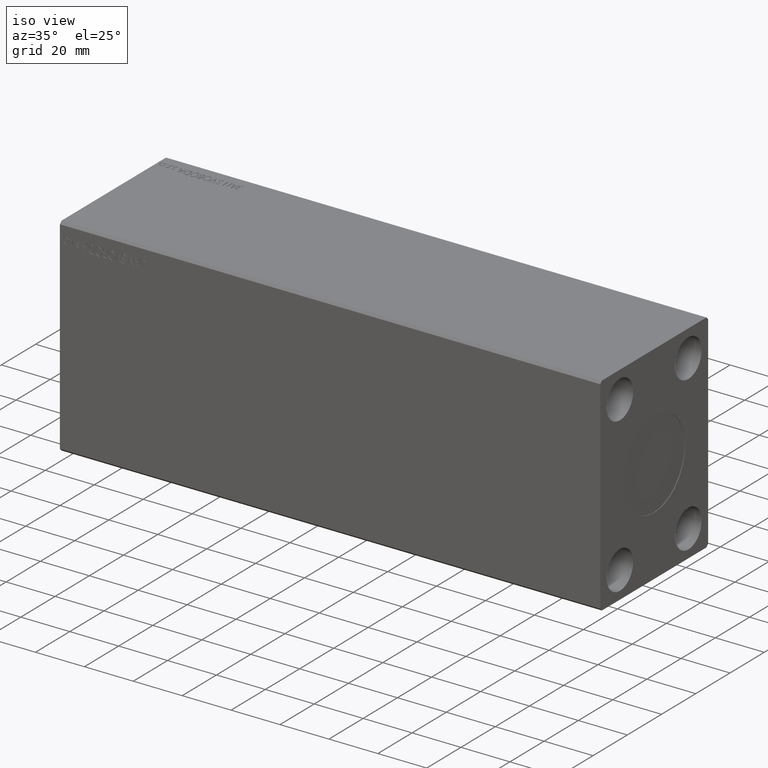
[diagram: clean part render]
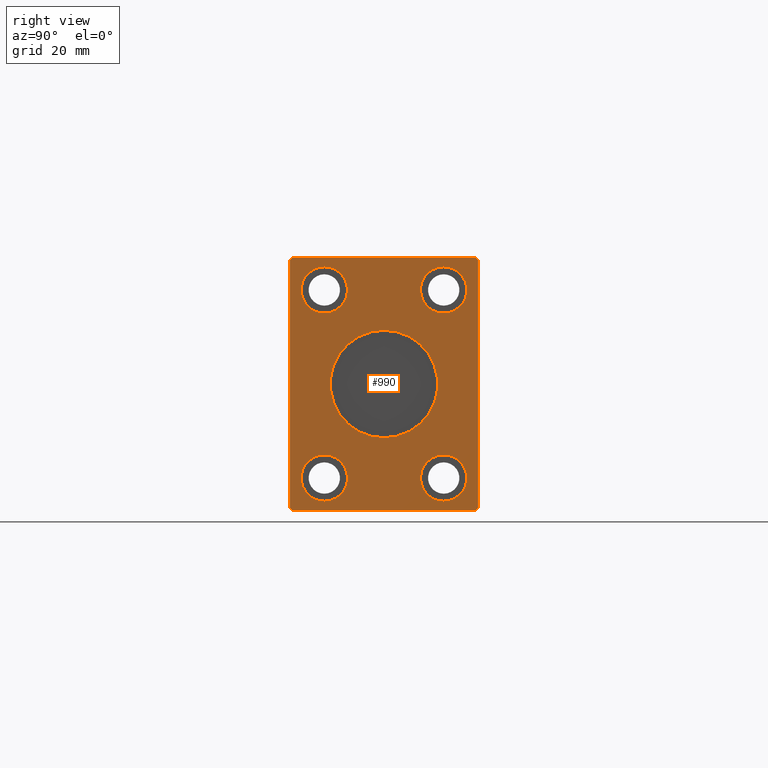
[diagram: tour spotlight — one face highlighted and labeled with its STEP entity id]
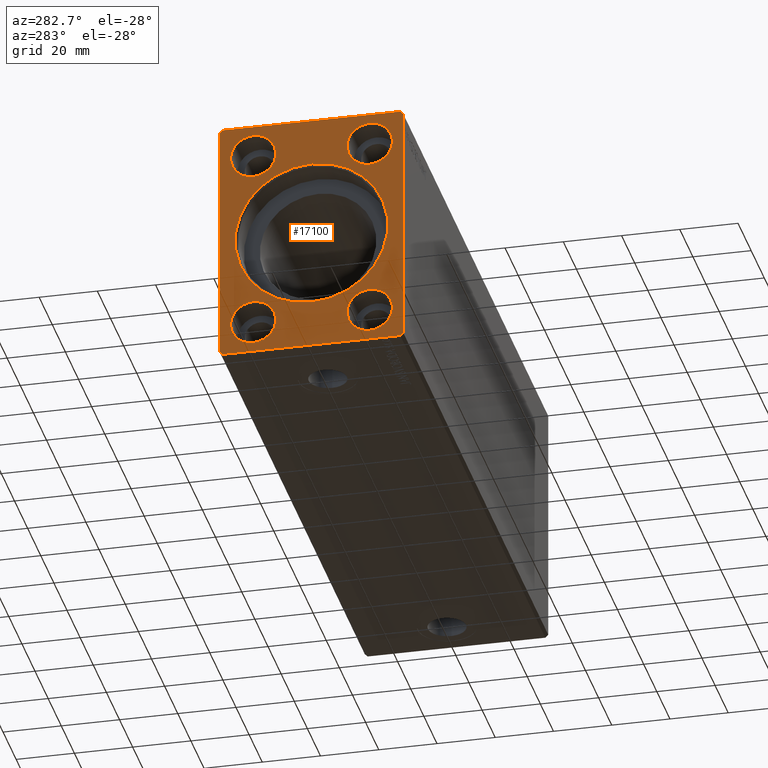
[diagram: tour spotlight — one face highlighted and labeled with its STEP entity id]
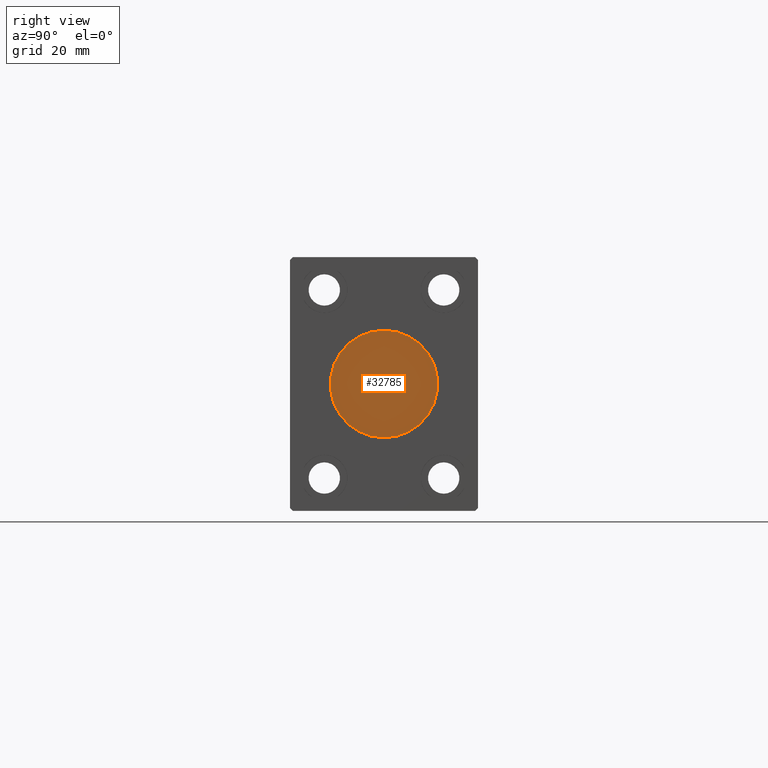
[diagram: tour spotlight — one face highlighted and labeled with its STEP entity id]
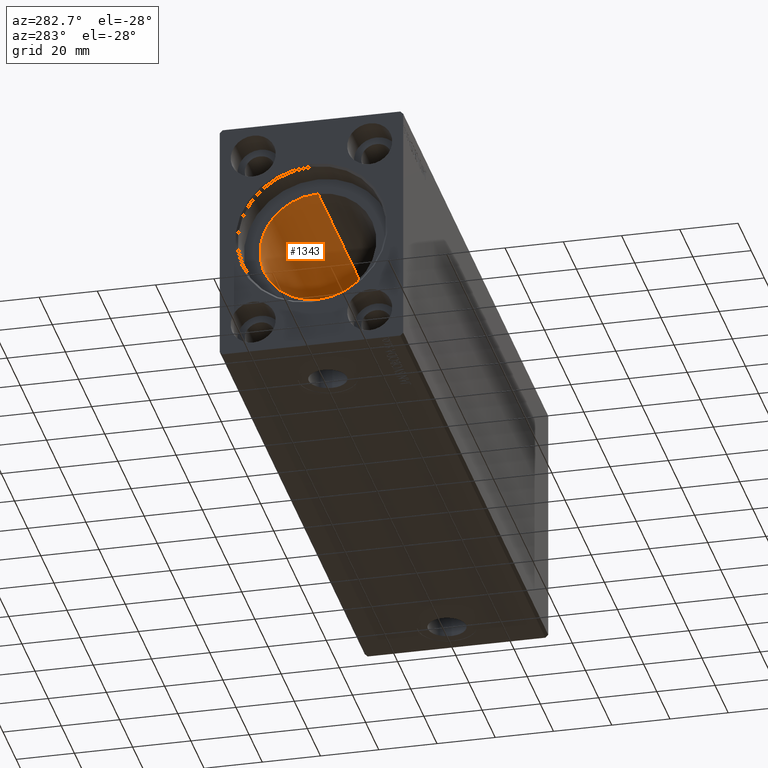
[diagram: tour spotlight — one face highlighted and labeled with its STEP entity id]
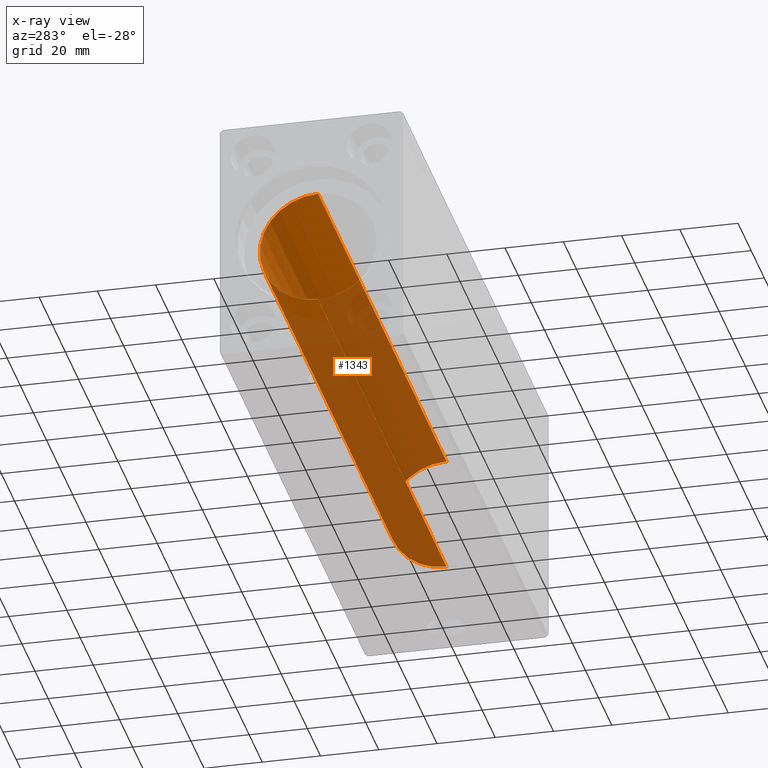
[diagram: x-ray of the same camera — body ghosted, this tour face saturated]
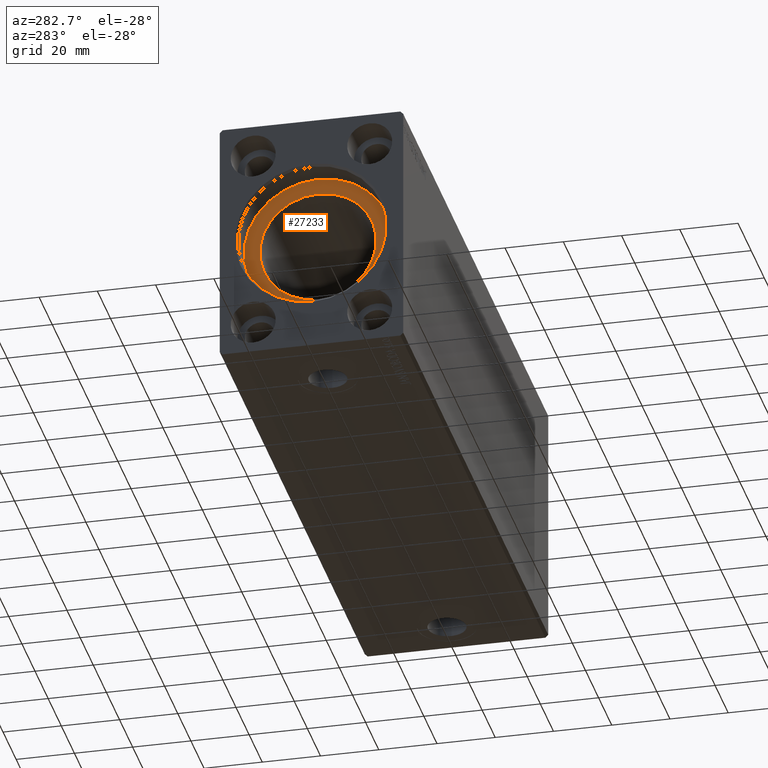
[diagram: tour spotlight — one face highlighted and labeled with its STEP entity id]
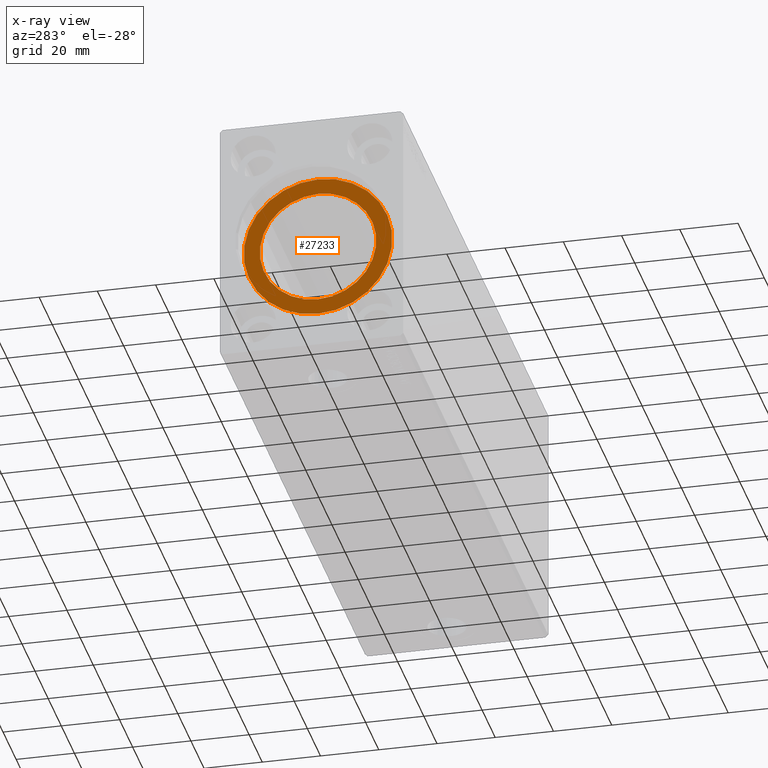
[diagram: x-ray of the same camera — body ghosted, this tour face saturated]
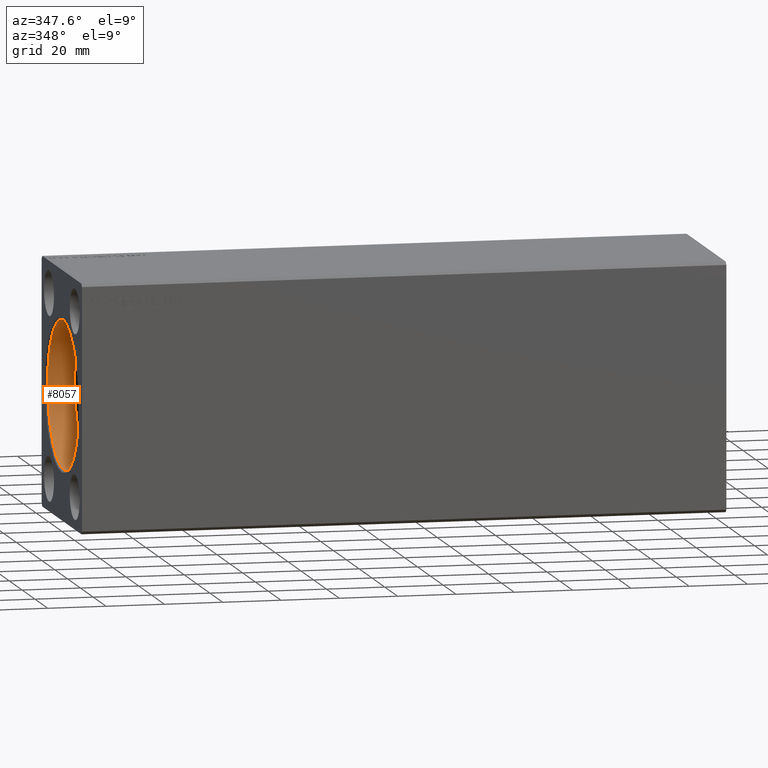
[diagram: tour spotlight — one face highlighted and labeled with its STEP entity id]
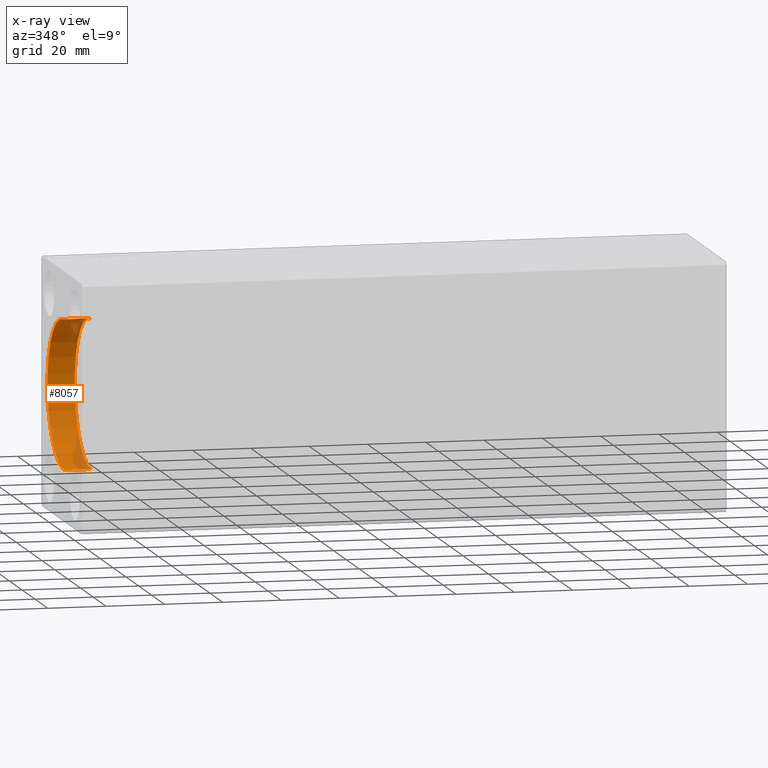
[diagram: x-ray of the same camera — body ghosted, this tour face saturated]
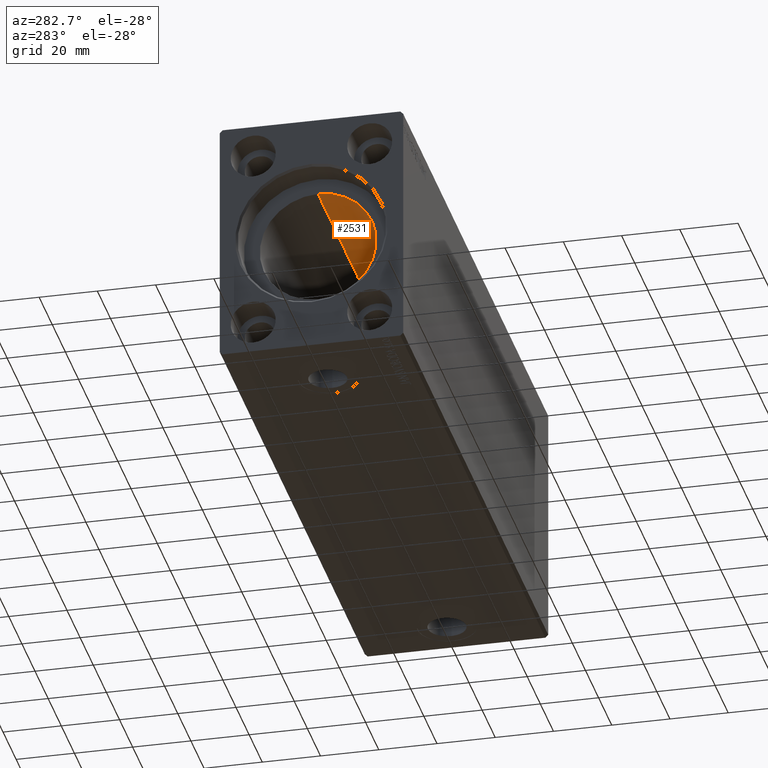
[diagram: tour spotlight — one face highlighted and labeled with its STEP entity id]
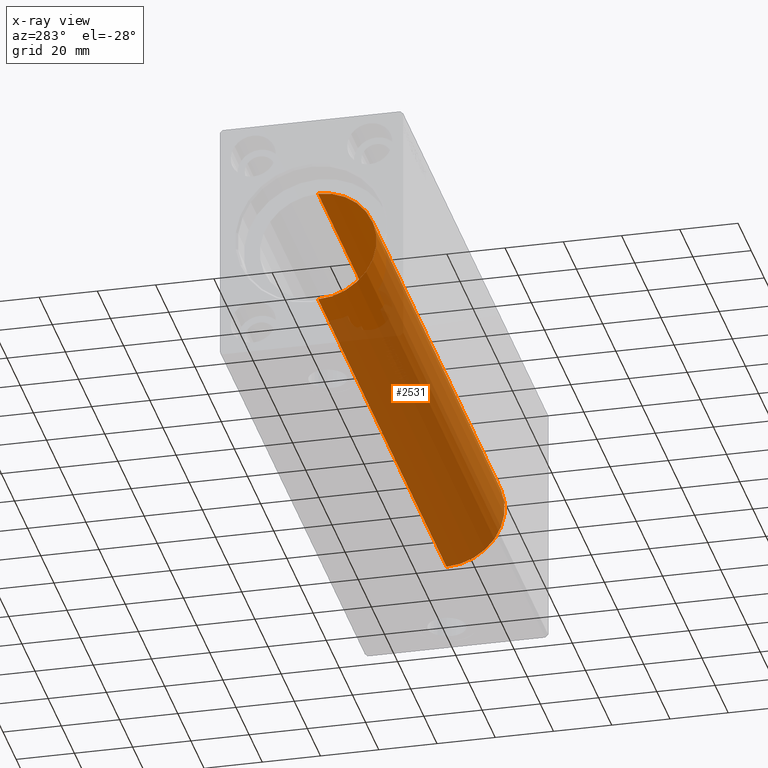
[diagram: x-ray of the same camera — body ghosted, this tour face saturated]
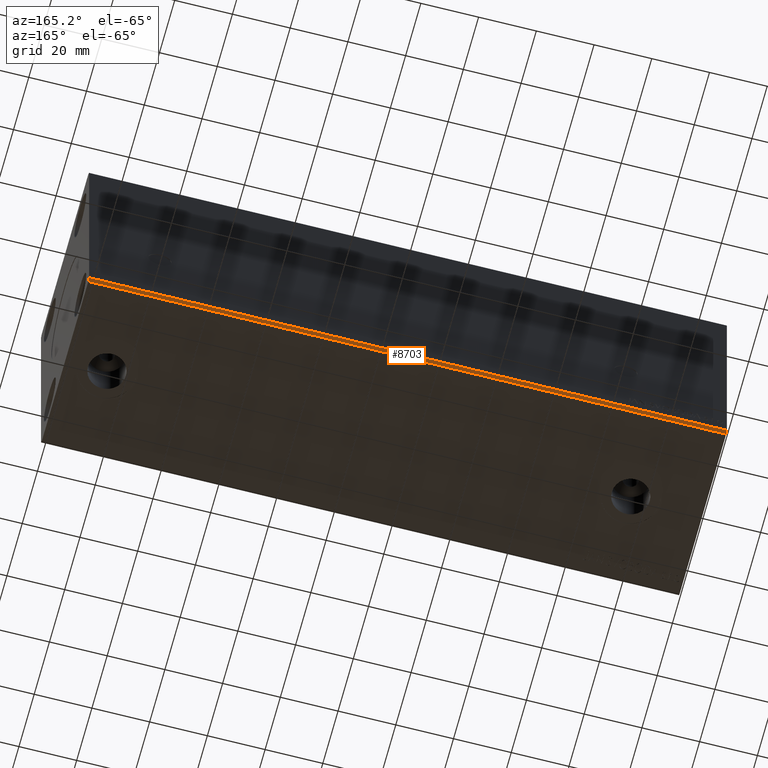
[diagram: tour spotlight — one face highlighted and labeled with its STEP entity id]
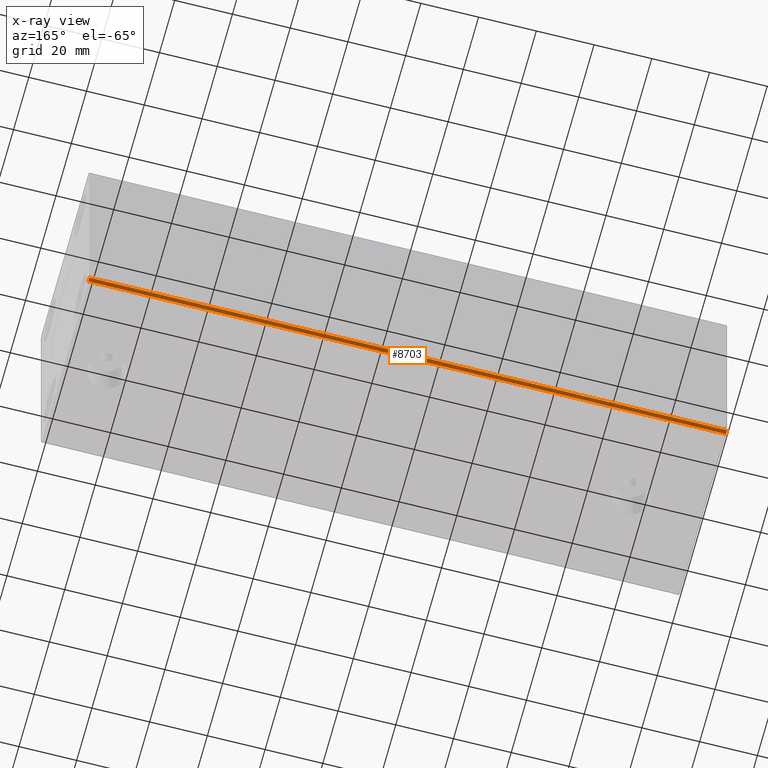
[diagram: x-ray of the same camera — body ghosted, this tour face saturated]
A machine part: a face-by-face anatomy tour. The part has 825 B-rep faces; the first image is the clean iso view, then the 8 largest visible faces are spotlighted one at a time (largest first), each with its STEP entity span.

Face 1 — right view, entity #990. In plain terms, the highlighted planar face has unit normal (1, 0, 0).
Definition (entity closure, byte-faithful):
#188 = CARTESIAN_POINT ( 'NONE',  ( 221.0000000000000000, 20.00000000000000355, 39.25000000000001421 ) ) ;
#322 = AXIS2_PLACEMENT_3D ( 'NONE', #17557, #14524, #27432 ) ;
#345 = ORIENTED_EDGE ( 'NONE', *, *, #14232, .T. ) ;
#841 = DIRECTION ( 'NONE',  ( 1.000000000000000000, 0.000000000000000000, 0.000000000000000000 ) ) ;
#850 = AXIS2_PLACEMENT_3D ( 'NONE', #18272, #40393, #14181 ) ;
#990 = ADVANCED_FACE ( 'NONE', ( #41472, #25145, #42525, #28788, #25769, #12878 ), #41890, .T. ) ;
#1108 = CARTESIAN_POINT ( 'NONE',  ( 221.0000000000000000, 20.00000000000000355, -39.24999999999998579 ) ) ;
#1114 = CARTESIAN_POINT ( 'NONE',  ( 221.0000000000000000, 20.00000000000000355, -31.49999999999998579 ) ) ;
#1329 = CIRCLE ( 'NONE', #12291, 7.750000000000000000 ) ;
#2014 = DIRECTION ( 'NONE',  ( 0.000000000000000000, -0.7071067811865474617, 0.7071067811865474617 ) ) ;
#2063 = EDGE_CURVE ( 'NONE', #3611, #35465, #28947, .T. ) ;
#2113 = CARTESIAN_POINT ( 'NONE',  ( 221.0000000000000000, 0.000000000000000000, -18.00000000000000000 ) ) ;
#2221 = VERTEX_POINT ( 'NONE', #31556 ) ;
#2292 = CARTESIAN_POINT ( 'NONE',  ( 221.0000000000000000, 20.00000000000000355, -23.74999999999998579 ) ) ;
#2311 = VECTOR ( 'NONE', #41940, 1000.000000000000000 ) ;
#2556 = ORIENTED_EDGE ( 'NONE', *, *, #19525, .F. ) ;
#2571 = VECTOR ( 'NONE', #40149, 1000.000000000000000 ) ;
#3136 = VERTEX_POINT ( 'NONE', #188 ) ;
#3527 = EDGE_LOOP ( 'NONE', ( #30609, #37494 ) ) ;
#3611 = VERTEX_POINT ( 'NONE', #11922 ) ;
#3717 = CARTESIAN_POINT ( 'NONE',  ( 221.0000000000000000, -19.99999999999999645, -39.24999999999998579 ) ) ;
#4621 = CARTESIAN_POINT ( 'NONE',  ( 221.0000000000000000, -31.50000000000000000, 41.49999999999999289 ) ) ;
#4965 = VERTEX_POINT ( 'NONE', #8391 ) ;
#5108 = CIRCLE ( 'NONE', #322, 7.750000000000000000 ) ;
#5175 = VERTEX_POINT ( 'NONE', #31520 ) ;
#5393 = CARTESIAN_POINT ( 'NONE',  ( 221.0000000000000000, 31.50000000000001421, 41.49999999999999289 ) ) ;
#5409 = DIRECTION ( 'NONE',  ( 0.000000000000000000, 0.000000000000000000, 1.000000000000000000 ) ) ;
#5449 = CARTESIAN_POINT ( 'NONE',  ( 221.0000000000000000, -30.50000000000000711, -42.50000000000000711 ) ) ;
#5748 = ORIENTED_EDGE ( 'NONE', *, *, #27133, .T. ) ;
#5787 = EDGE_CURVE ( 'NONE', #32675, #37965, #28838, .T. ) ;
#5836 = AXIS2_PLACEMENT_3D ( 'NONE', #38049, #6189, #5409 ) ;
#5898 = EDGE_LOOP ( 'NONE', ( #2556, #32119 ) ) ;
#5958 = CARTESIAN_POINT ( 'NONE',  ( 221.0000000000000000, -30.50000000000000355, 42.49999999999999289 ) ) ;
#6145 = AXIS2_PLACEMENT_3D ( 'NONE', #34605, #15466, #41675 ) ;
#6189 = DIRECTION ( 'NONE',  ( -1.000000000000000000, -0.000000000000000000, -0.000000000000000000 ) ) ;
#7093 = LINE ( 'NONE', #40382, #23037 ) ;
#7389 = EDGE_CURVE ( 'NONE', #32930, #32675, #17232, .T. ) ;
#7712 = CARTESIAN_POINT ( 'NONE',  ( 221.0000000000000000, 31.50000000000001421, -41.50000000000000711 ) ) ;
#7934 = DIRECTION ( 'NONE',  ( 1.000000000000000000, -0.000000000000000000, -0.000000000000000000 ) ) ;
#8120 = EDGE_CURVE ( 'NONE', #26869, #22529, #27068, .T. ) ;
#8391 = CARTESIAN_POINT ( 'NONE',  ( 221.0000000000000000, -30.50000000000000355, 42.49999999999999289 ) ) ;
#9571 = DIRECTION ( 'NONE',  ( 1.000000000000000000, -0.000000000000000000, -0.000000000000000000 ) ) ;
#9619 = VECTOR ( 'NONE', #37416, 999.9999999999998863 ) ;
#9757 = AXIS2_PLACEMENT_3D ( 'NONE', #18921, #15899, #21932 ) ;
#9962 = VERTEX_POINT ( 'NONE', #23535 ) ;
#10293 = CARTESIAN_POINT ( 'NONE',  ( 221.0000000000000000, 0.000000000000000000, 0.000000000000000000 ) ) ;
#10900 = DIRECTION ( 'NONE',  ( 0.000000000000000000, 0.000000000000000000, 1.000000000000000000 ) ) ;
#11028 = VERTEX_POINT ( 'NONE', #42450 ) ;
#11446 = CIRCLE ( 'NONE', #25843, 18.00000000000000000 ) ;
#11922 = CARTESIAN_POINT ( 'NONE',  ( 221.0000000000000000, 2.204364238465235428E-15, 18.00000000000000000 ) ) ;
#12276 = EDGE_CURVE ( 'NONE', #37167, #26158, #14889, .T. ) ;
#12291 = AXIS2_PLACEMENT_3D ( 'NONE', #35777, #9571, #19255 ) ;
#12638 = ORIENTED_EDGE ( 'NONE', *, *, #8120, .T. ) ;
#12675 = EDGE_CURVE ( 'NONE', #3136, #2221, #5108, .T. ) ;
#12878 = FACE_BOUND ( 'NONE', #39175, .T. ) ;
#14181 = DIRECTION ( 'NONE',  ( 0.000000000000000000, 0.000000000000000000, -1.000000000000000000 ) ) ;
#14232 = EDGE_CURVE ( 'NONE', #24899, #11028, #16099, .T. ) ;
#14351 = CIRCLE ( 'NONE', #6145, 7.750000000000000000 ) ;
#14524 = DIRECTION ( 'NONE',  ( 1.000000000000000000, -0.000000000000000000, -0.000000000000000000 ) ) ;
#14656 = VERTEX_POINT ( 'NONE', #4621 ) ;
#14843 = DIRECTION ( 'NONE',  ( 0.000000000000000000, 0.000000000000000000, 1.000000000000000000 ) ) ;
#14889 = LINE ( 'NONE', #30998, #35301 ) ;
#15346 = ORIENTED_EDGE ( 'NONE', *, *, #12276, .T. ) ;
#15466 = DIRECTION ( 'NONE',  ( -1.000000000000000000, -0.000000000000000000, -0.000000000000000000 ) ) ;
#15899 = DIRECTION ( 'NONE',  ( 1.000000000000000000, 0.000000000000000000, 0.000000000000000000 ) ) ;
#16079 = VERTEX_POINT ( 'NONE', #3717 ) ;
#16099 = CIRCLE ( 'NONE', #5836, 7.750000000000000000 ) ;
#16344 = CIRCLE ( 'NONE', #26650, 7.750000000000000000 ) ;
#16513 = EDGE_CURVE ( 'NONE', #14656, #32930, #7093, .T. ) ;
#17232 = LINE ( 'NONE', #30728, #19486 ) ;
#17384 = ORIENTED_EDGE ( 'NONE', *, *, #39932, .T. ) ;
#17557 = CARTESIAN_POINT ( 'NONE',  ( 221.0000000000000000, 20.00000000000000355, 31.50000000000001421 ) ) ;
#17739 = AXIS2_PLACEMENT_3D ( 'NONE', #32156, #38410, #18664 ) ;
#18037 = DIRECTION ( 'NONE',  ( 0.000000000000000000, 0.000000000000000000, -1.000000000000000000 ) ) ;
#18262 = ORIENTED_EDGE ( 'NONE', *, *, #29694, .T. ) ;
#18272 = CARTESIAN_POINT ( 'NONE',  ( 221.0000000000000000, 0.000000000000000000, 0.000000000000000000 ) ) ;
#18427 = ORIENTED_EDGE ( 'NONE', *, *, #37268, .T. ) ;
#18664 = DIRECTION ( 'NONE',  ( 0.000000000000000000, 0.000000000000000000, -1.000000000000000000 ) ) ;
#18921 = CARTESIAN_POINT ( 'NONE',  ( 221.0000000000000000, 0.000000000000000000, 0.000000000000000000 ) ) ;
#19255 = DIRECTION ( 'NONE',  ( 0.000000000000000000, 0.000000000000000000, -1.000000000000000000 ) ) ;
#19486 = VECTOR ( 'NONE', #30941, 1000.000000000000114 ) ;
#19525 = EDGE_CURVE ( 'NONE', #35465, #3611, #11446, .T. ) ;
#19693 = VECTOR ( 'NONE', #23905, 1000.000000000000000 ) ;
#20304 = CARTESIAN_POINT ( 'NONE',  ( 221.0000000000000000, 30.50000000000001776, -42.50000000000000711 ) ) ;
#21217 = EDGE_CURVE ( 'NONE', #26158, #4965, #26477, .T. ) ;
#21286 = CARTESIAN_POINT ( 'NONE',  ( 221.0000000000000000, 30.50000000000001421, 42.49999999999999289 ) ) ;
#21698 = ORIENTED_EDGE ( 'NONE', *, *, #12675, .F. ) ;
#21725 = LINE ( 'NONE', #34827, #9619 ) ;
#21797 = ORIENTED_EDGE ( 'NONE', *, *, #39326, .F. ) ;
#21932 = DIRECTION ( 'NONE',  ( 0.000000000000000000, 0.000000000000000000, -1.000000000000000000 ) ) ;
#22108 = CARTESIAN_POINT ( 'NONE',  ( 221.0000000000000000, -31.50000000000000000, -41.50000000000000711 ) ) ;
#22529 = VERTEX_POINT ( 'NONE', #2292 ) ;
#23007 = ORIENTED_EDGE ( 'NONE', *, *, #21217, .T. ) ;
#23037 = VECTOR ( 'NONE', #23853, 1000.000000000000000 ) ;
#23482 = CARTESIAN_POINT ( 'NONE',  ( 221.0000000000000000, 30.50000000000001421, 42.49999999999999289 ) ) ;
#23535 = CARTESIAN_POINT ( 'NONE',  ( 221.0000000000000000, -19.99999999999999645, -23.74999999999998579 ) ) ;
#23853 = DIRECTION ( 'NONE',  ( 0.000000000000000000, 0.000000000000000000, -1.000000000000000000 ) ) ;
#23905 = DIRECTION ( 'NONE',  ( 0.000000000000000000, -1.000000000000000000, 0.000000000000000000 ) ) ;
#24483 = EDGE_LOOP ( 'NONE', ( #15346, #23007, #5748, #35468, #29497, #42512, #17384, #34911 ) ) ;
#24874 = DIRECTION ( 'NONE',  ( 0.000000000000000000, -0.7071067811865462405, -0.7071067811865489050 ) ) ;
#24899 = VERTEX_POINT ( 'NONE', #36375 ) ;
#25145 = FACE_BOUND ( 'NONE', #36592, .T. ) ;
#25259 = CIRCLE ( 'NONE', #17739, 7.750000000000000000 ) ;
#25360 = CIRCLE ( 'NONE', #30846, 7.750000000000000000 ) ;
#25769 = FACE_BOUND ( 'NONE', #3527, .T. ) ;
#25843 = AXIS2_PLACEMENT_3D ( 'NONE', #10293, #841, #39722 ) ;
#26158 = VERTEX_POINT ( 'NONE', #21286 ) ;
#26477 = LINE ( 'NONE', #23482, #19693 ) ;
#26650 = AXIS2_PLACEMENT_3D ( 'NONE', #27012, #36890, #10900 ) ;
#26869 = VERTEX_POINT ( 'NONE', #1108 ) ;
#27012 = CARTESIAN_POINT ( 'NONE',  ( 221.0000000000000000, -19.99999999999999645, 31.50000000000001421 ) ) ;
#27068 = CIRCLE ( 'NONE', #32518, 7.750000000000000000 ) ;
#27094 = EDGE_CURVE ( 'NONE', #5175, #37167, #30676, .T. ) ;
#27133 = EDGE_CURVE ( 'NONE', #4965, #14656, #31525, .T. ) ;
#27432 = DIRECTION ( 'NONE',  ( 0.000000000000000000, 0.000000000000000000, -1.000000000000000000 ) ) ;
#28788 = FACE_OUTER_BOUND ( 'NONE', #24483, .T. ) ;
#28838 = LINE ( 'NONE', #5449, #2311 ) ;
#28947 = CIRCLE ( 'NONE', #850, 18.00000000000000000 ) ;
#29444 = EDGE_CURVE ( 'NONE', #16079, #9962, #25259, .T. ) ;
#29497 = ORIENTED_EDGE ( 'NONE', *, *, #7389, .T. ) ;
#29694 = EDGE_CURVE ( 'NONE', #11028, #24899, #16344, .T. ) ;
#30609 = ORIENTED_EDGE ( 'NONE', *, *, #29444, .F. ) ;
#30676 = LINE ( 'NONE', #7712, #2571 ) ;
#30728 = CARTESIAN_POINT ( 'NONE',  ( 221.0000000000000000, -31.50000000000000000, -41.50000000000000711 ) ) ;
#30846 = AXIS2_PLACEMENT_3D ( 'NONE', #34345, #7934, #18037 ) ;
#30941 = DIRECTION ( 'NONE',  ( 0.000000000000000000, 0.7071067811865451302, -0.7071067811865500152 ) ) ;
#30998 = CARTESIAN_POINT ( 'NONE',  ( 221.0000000000000000, 31.50000000000001421, 41.49999999999999289 ) ) ;
#31344 = EDGE_CURVE ( 'NONE', #9962, #16079, #1329, .T. ) ;
#31520 = CARTESIAN_POINT ( 'NONE',  ( 221.0000000000000000, 31.50000000000001421, -41.50000000000000711 ) ) ;
#31525 = LINE ( 'NONE', #5958, #34135 ) ;
#31556 = CARTESIAN_POINT ( 'NONE',  ( 221.0000000000000000, 20.00000000000000355, 23.75000000000001421 ) ) ;
#32119 = ORIENTED_EDGE ( 'NONE', *, *, #2063, .F. ) ;
#32156 = CARTESIAN_POINT ( 'NONE',  ( 221.0000000000000000, -19.99999999999999645, -31.49999999999998579 ) ) ;
#32518 = AXIS2_PLACEMENT_3D ( 'NONE', #1114, #37622, #14843 ) ;
#32675 = VERTEX_POINT ( 'NONE', #41916 ) ;
#32930 = VERTEX_POINT ( 'NONE', #22108 ) ;
#34135 = VECTOR ( 'NONE', #24874, 999.9999999999998863 ) ;
#34345 = CARTESIAN_POINT ( 'NONE',  ( 221.0000000000000000, 20.00000000000000355, 31.50000000000001421 ) ) ;
#34605 = CARTESIAN_POINT ( 'NONE',  ( 221.0000000000000000, 20.00000000000000355, -31.49999999999998579 ) ) ;
#34827 = CARTESIAN_POINT ( 'NONE',  ( 221.0000000000000000, 30.50000000000001776, -42.50000000000000711 ) ) ;
#34911 = ORIENTED_EDGE ( 'NONE', *, *, #27094, .T. ) ;
#35297 = EDGE_LOOP ( 'NONE', ( #12638, #18427 ) ) ;
#35301 = VECTOR ( 'NONE', #2014, 1000.000000000000114 ) ;
#35465 = VERTEX_POINT ( 'NONE', #2113 ) ;
#35468 = ORIENTED_EDGE ( 'NONE', *, *, #16513, .T. ) ;
#35777 = CARTESIAN_POINT ( 'NONE',  ( 221.0000000000000000, -19.99999999999999645, -31.49999999999998579 ) ) ;
#36375 = CARTESIAN_POINT ( 'NONE',  ( 221.0000000000000000, -19.99999999999999645, 23.75000000000001421 ) ) ;
#36592 = EDGE_LOOP ( 'NONE', ( #345, #18262 ) ) ;
#36890 = DIRECTION ( 'NONE',  ( -1.000000000000000000, -0.000000000000000000, -0.000000000000000000 ) ) ;
#37167 = VERTEX_POINT ( 'NONE', #5393 ) ;
#37268 = EDGE_CURVE ( 'NONE', #22529, #26869, #14351, .T. ) ;
#37416 = DIRECTION ( 'NONE',  ( 0.000000000000000000, 0.7071067811865462405, 0.7071067811865489050 ) ) ;
#37494 = ORIENTED_EDGE ( 'NONE', *, *, #31344, .F. ) ;
#37622 = DIRECTION ( 'NONE',  ( -1.000000000000000000, -0.000000000000000000, -0.000000000000000000 ) ) ;
#37965 = VERTEX_POINT ( 'NONE', #20304 ) ;
#38049 = CARTESIAN_POINT ( 'NONE',  ( 221.0000000000000000, -19.99999999999999645, 31.50000000000001421 ) ) ;
#38410 = DIRECTION ( 'NONE',  ( 1.000000000000000000, -0.000000000000000000, -0.000000000000000000 ) ) ;
#39175 = EDGE_LOOP ( 'NONE', ( #21797, #21698 ) ) ;
#39326 = EDGE_CURVE ( 'NONE', #2221, #3136, #25360, .T. ) ;
#39722 = DIRECTION ( 'NONE',  ( 0.000000000000000000, 0.000000000000000000, -1.000000000000000000 ) ) ;
#39932 = EDGE_CURVE ( 'NONE', #37965, #5175, #21725, .T. ) ;
#40149 = DIRECTION ( 'NONE',  ( 0.000000000000000000, 0.000000000000000000, 1.000000000000000000 ) ) ;
#40382 = CARTESIAN_POINT ( 'NONE',  ( 221.0000000000000000, -31.50000000000000000, 41.49999999999999289 ) ) ;
#40393 = DIRECTION ( 'NONE',  ( 1.000000000000000000, 0.000000000000000000, 0.000000000000000000 ) ) ;
#41472 = FACE_BOUND ( 'NONE', #5898, .T. ) ;
#41675 = DIRECTION ( 'NONE',  ( 0.000000000000000000, 0.000000000000000000, 1.000000000000000000 ) ) ;
#41890 = PLANE ( 'NONE',  #9757 ) ;
#41916 = CARTESIAN_POINT ( 'NONE',  ( 221.0000000000000000, -30.50000000000000711, -42.50000000000000711 ) ) ;
#41940 = DIRECTION ( 'NONE',  ( 0.000000000000000000, 1.000000000000000000, 0.000000000000000000 ) ) ;
#42450 = CARTESIAN_POINT ( 'NONE',  ( 221.0000000000000000, -19.99999999999999645, 39.25000000000001421 ) ) ;
#42512 = ORIENTED_EDGE ( 'NONE', *, *, #5787, .T. ) ;
#42525 = FACE_BOUND ( 'NONE', #35297, .T. ) ;

Face 2 — auxiliary view, entity #17100. In plain terms, the highlighted planar face has unit normal (1, 0, 0).
Definition (entity closure, byte-faithful):
#298 = ORIENTED_EDGE ( 'NONE', *, *, #40746, .T. ) ;
#529 = DIRECTION ( 'NONE',  ( 0.000000000000000000, 0.000000000000000000, 1.000000000000000000 ) ) ;
#668 = VERTEX_POINT ( 'NONE', #39359 ) ;
#717 = DIRECTION ( 'NONE',  ( 0.000000000000000000, 0.000000000000000000, -1.000000000000000000 ) ) ;
#943 = CARTESIAN_POINT ( 'NONE',  ( 0.000000000000000000, 20.00000000000000355, 31.50000000000001421 ) ) ;
#968 = DIRECTION ( 'NONE',  ( 1.000000000000000000, -0.000000000000000000, -0.000000000000000000 ) ) ;
#1303 = VECTOR ( 'NONE', #6004, 999.9999999999998863 ) ;
#1353 = DIRECTION ( 'NONE',  ( 0.000000000000000000, -1.000000000000000000, 0.000000000000000000 ) ) ;
#1648 = AXIS2_PLACEMENT_3D ( 'NONE', #38506, #9494, #9073 ) ;
#1761 = EDGE_CURVE ( 'NONE', #31023, #18601, #18111, .T. ) ;
#4098 = CARTESIAN_POINT ( 'NONE',  ( 0.000000000000000000, 20.00000000000000355, -31.49999999999998579 ) ) ;
#4153 = FACE_BOUND ( 'NONE', #33943, .T. ) ;
#4281 = CARTESIAN_POINT ( 'NONE',  ( 0.000000000000000000, -30.50000000000000711, -42.50000000000000711 ) ) ;
#4313 = CARTESIAN_POINT ( 'NONE',  ( 0.000000000000000000, 0.000000000000000000, 26.19999999999997442 ) ) ;
#4568 = CARTESIAN_POINT ( 'NONE',  ( 0.000000000000000000, 20.00000000000000355, 39.25000000000001421 ) ) ;
#4683 = EDGE_CURVE ( 'NONE', #668, #25524, #26971, .T. ) ;
#4880 = CARTESIAN_POINT ( 'NONE',  ( 0.000000000000000000, -19.99999999999999645, -23.74999999999998579 ) ) ;
#5168 = VERTEX_POINT ( 'NONE', #40986 ) ;
#5295 = CARTESIAN_POINT ( 'NONE',  ( 0.000000000000000000, -31.50000000000000000, -41.50000000000000711 ) ) ;
#5846 = EDGE_CURVE ( 'NONE', #12329, #29761, #27707, .T. ) ;
#5855 = CARTESIAN_POINT ( 'NONE',  ( 0.000000000000000000, 20.00000000000000355, -31.49999999999998579 ) ) ;
#6004 = DIRECTION ( 'NONE',  ( 0.000000000000000000, -0.7071067811865462405, -0.7071067811865489050 ) ) ;
#6166 = VECTOR ( 'NONE', #529, 1000.000000000000000 ) ;
#6563 = CARTESIAN_POINT ( 'NONE',  ( 0.000000000000000000, 3.208574613766061749E-15, -26.19999999999997442 ) ) ;
#6948 = CARTESIAN_POINT ( 'NONE',  ( 0.000000000000000000, 20.00000000000000355, 31.50000000000001421 ) ) ;
#7244 = CARTESIAN_POINT ( 'NONE',  ( 0.000000000000000000, -31.50000000000000000, -41.50000000000000711 ) ) ;
#7275 = AXIS2_PLACEMENT_3D ( 'NONE', #42174, #33137, #12740 ) ;
#7518 = DIRECTION ( 'NONE',  ( 1.000000000000000000, 0.000000000000000000, 0.000000000000000000 ) ) ;
#7562 = CIRCLE ( 'NONE', #41849, 7.750000000000000000 ) ;
#7696 = ORIENTED_EDGE ( 'NONE', *, *, #29340, .T. ) ;
#8006 = PLANE ( 'NONE',  #26470 ) ;
#8037 = CARTESIAN_POINT ( 'NONE',  ( 0.000000000000000000, 30.50000000000001776, -42.50000000000000711 ) ) ;
#8743 = ORIENTED_EDGE ( 'NONE', *, *, #31719, .F. ) ;
#9042 = VERTEX_POINT ( 'NONE', #10790 ) ;
#9073 = DIRECTION ( 'NONE',  ( 0.000000000000000000, 0.000000000000000000, -1.000000000000000000 ) ) ;
#9103 = ORIENTED_EDGE ( 'NONE', *, *, #36444, .F. ) ;
#9192 = EDGE_LOOP ( 'NONE', ( #12580, #17699 ) ) ;
#9281 = ORIENTED_EDGE ( 'NONE', *, *, #34257, .F. ) ;
#9468 = ORIENTED_EDGE ( 'NONE', *, *, #38648, .F. ) ;
#9494 = DIRECTION ( 'NONE',  ( 1.000000000000000000, -0.000000000000000000, -0.000000000000000000 ) ) ;
#9755 = VERTEX_POINT ( 'NONE', #6563 ) ;
#10790 = CARTESIAN_POINT ( 'NONE',  ( 0.000000000000000000, 31.50000000000001421, -41.50000000000000711 ) ) ;
#10928 = VECTOR ( 'NONE', #14788, 1000.000000000000000 ) ;
#11015 = FACE_OUTER_BOUND ( 'NONE', #34707, .T. ) ;
#11426 = EDGE_CURVE ( 'NONE', #24245, #23922, #24967, .T. ) ;
#11442 = ORIENTED_EDGE ( 'NONE', *, *, #31668, .T. ) ;
#11633 = VECTOR ( 'NONE', #27137, 1000.000000000000114 ) ;
#11698 = AXIS2_PLACEMENT_3D ( 'NONE', #32630, #38885, #16551 ) ;
#11738 = CARTESIAN_POINT ( 'NONE',  ( 0.000000000000000000, -19.99999999999999645, 31.50000000000001421 ) ) ;
#11804 = DIRECTION ( 'NONE',  ( 0.000000000000000000, 1.000000000000000000, 0.000000000000000000 ) ) ;
#12223 = CIRCLE ( 'NONE', #14963, 26.19999999999997442 ) ;
#12329 = VERTEX_POINT ( 'NONE', #37456 ) ;
#12580 = ORIENTED_EDGE ( 'NONE', *, *, #15525, .F. ) ;
#12740 = DIRECTION ( 'NONE',  ( 0.000000000000000000, 0.000000000000000000, 1.000000000000000000 ) ) ;
#12742 = VERTEX_POINT ( 'NONE', #7244 ) ;
#13073 = CARTESIAN_POINT ( 'NONE',  ( 0.000000000000000000, -30.50000000000000355, 42.49999999999999289 ) ) ;
#13998 = CARTESIAN_POINT ( 'NONE',  ( 0.000000000000000000, -19.99999999999999645, 23.75000000000001421 ) ) ;
#14069 = DIRECTION ( 'NONE',  ( 0.000000000000000000, 0.000000000000000000, -1.000000000000000000 ) ) ;
#14349 = CARTESIAN_POINT ( 'NONE',  ( 0.000000000000000000, -30.50000000000000355, 42.49999999999999289 ) ) ;
#14452 = DIRECTION ( 'NONE',  ( 0.000000000000000000, 0.7071067811865462405, 0.7071067811865489050 ) ) ;
#14598 = CARTESIAN_POINT ( 'NONE',  ( 0.000000000000000000, -30.50000000000000711, -42.50000000000000711 ) ) ;
#14788 = DIRECTION ( 'NONE',  ( 0.000000000000000000, 0.000000000000000000, -1.000000000000000000 ) ) ;
#14910 = CARTESIAN_POINT ( 'NONE',  ( 0.000000000000000000, -19.99999999999999645, -31.49999999999998579 ) ) ;
#14963 = AXIS2_PLACEMENT_3D ( 'NONE', #23631, #7518, #24470 ) ;
#15296 = EDGE_CURVE ( 'NONE', #25524, #668, #38788, .T. ) ;
#15525 = EDGE_CURVE ( 'NONE', #35164, #42134, #34663, .T. ) ;
#15600 = EDGE_LOOP ( 'NONE', ( #16019, #11442 ) ) ;
#16019 = ORIENTED_EDGE ( 'NONE', *, *, #11426, .T. ) ;
#16166 = CIRCLE ( 'NONE', #7275, 7.750000000000000000 ) ;
#16372 = CARTESIAN_POINT ( 'NONE',  ( 0.000000000000000000, -19.99999999999999645, 39.25000000000001421 ) ) ;
#16551 = DIRECTION ( 'NONE',  ( 0.000000000000000000, 0.000000000000000000, -1.000000000000000000 ) ) ;
#16990 = EDGE_CURVE ( 'NONE', #42134, #35164, #16166, .T. ) ;
#17100 = ADVANCED_FACE ( 'NONE', ( #40441, #33567, #4153, #11015, #37430, #23914 ), #8006, .F. ) ;
#17699 = ORIENTED_EDGE ( 'NONE', *, *, #16990, .F. ) ;
#17909 = CARTESIAN_POINT ( 'NONE',  ( 0.000000000000000000, 30.50000000000001776, -42.50000000000000711 ) ) ;
#18111 = LINE ( 'NONE', #24543, #27617 ) ;
#18406 = DIRECTION ( 'NONE',  ( 0.000000000000000000, 0.7071067811865451302, -0.7071067811865500152 ) ) ;
#18601 = VERTEX_POINT ( 'NONE', #14349 ) ;
#19530 = ORIENTED_EDGE ( 'NONE', *, *, #5846, .T. ) ;
#19913 = CIRCLE ( 'NONE', #11698, 26.19999999999997442 ) ;
#20071 = DIRECTION ( 'NONE',  ( 0.000000000000000000, 0.000000000000000000, -1.000000000000000000 ) ) ;
#20206 = DIRECTION ( 'NONE',  ( 0.000000000000000000, 0.000000000000000000, 1.000000000000000000 ) ) ;
#20294 = CARTESIAN_POINT ( 'NONE',  ( 0.000000000000000000, 31.50000000000001421, -41.50000000000000711 ) ) ;
#20694 = DIRECTION ( 'NONE',  ( 0.000000000000000000, 0.000000000000000000, -1.000000000000000000 ) ) ;
#21003 = ORIENTED_EDGE ( 'NONE', *, *, #40706, .T. ) ;
#21108 = CARTESIAN_POINT ( 'NONE',  ( 0.000000000000000000, 30.50000000000001421, 42.49999999999999289 ) ) ;
#22597 = DIRECTION ( 'NONE',  ( 0.000000000000000000, 0.000000000000000000, 1.000000000000000000 ) ) ;
#22679 = CARTESIAN_POINT ( 'NONE',  ( 0.000000000000000000, 20.00000000000000355, 23.75000000000001421 ) ) ;
#23631 = CARTESIAN_POINT ( 'NONE',  ( 0.000000000000000000, 0.000000000000000000, 0.000000000000000000 ) ) ;
#23706 = DIRECTION ( 'NONE',  ( 1.000000000000000000, -0.000000000000000000, -0.000000000000000000 ) ) ;
#23914 = FACE_BOUND ( 'NONE', #15600, .T. ) ;
#23922 = VERTEX_POINT ( 'NONE', #22679 ) ;
#24245 = VERTEX_POINT ( 'NONE', #4568 ) ;
#24470 = DIRECTION ( 'NONE',  ( 0.000000000000000000, 0.000000000000000000, -1.000000000000000000 ) ) ;
#24543 = CARTESIAN_POINT ( 'NONE',  ( 0.000000000000000000, 30.50000000000001421, 42.49999999999999289 ) ) ;
#24836 = DIRECTION ( 'NONE',  ( 0.000000000000000000, 0.000000000000000000, 1.000000000000000000 ) ) ;
#24967 = CIRCLE ( 'NONE', #33890, 7.750000000000000000 ) ;
#25377 = VERTEX_POINT ( 'NONE', #4313 ) ;
#25461 = DIRECTION ( 'NONE',  ( -1.000000000000000000, 0.000000000000000000, 0.000000000000000000 ) ) ;
#25524 = VERTEX_POINT ( 'NONE', #25525 ) ;
#25525 = CARTESIAN_POINT ( 'NONE',  ( 0.000000000000000000, 20.00000000000000355, -23.74999999999998579 ) ) ;
#26432 = EDGE_LOOP ( 'NONE', ( #21003, #19530 ) ) ;
#26470 = AXIS2_PLACEMENT_3D ( 'NONE', #26920, #40019, #717 ) ;
#26920 = CARTESIAN_POINT ( 'NONE',  ( 0.000000000000000000, 0.000000000000000000, 0.000000000000000000 ) ) ;
#26971 = CIRCLE ( 'NONE', #31767, 7.750000000000000000 ) ;
#27089 = VERTEX_POINT ( 'NONE', #4281 ) ;
#27137 = DIRECTION ( 'NONE',  ( 0.000000000000000000, -0.7071067811865474617, 0.7071067811865474617 ) ) ;
#27502 = LINE ( 'NONE', #14598, #36992 ) ;
#27617 = VECTOR ( 'NONE', #1353, 1000.000000000000000 ) ;
#27707 = CIRCLE ( 'NONE', #1648, 7.750000000000000000 ) ;
#28702 = VERTEX_POINT ( 'NONE', #8037 ) ;
#29340 = EDGE_CURVE ( 'NONE', #9755, #25377, #12223, .T. ) ;
#29661 = VERTEX_POINT ( 'NONE', #37104 ) ;
#29761 = VERTEX_POINT ( 'NONE', #4880 ) ;
#29879 = EDGE_CURVE ( 'NONE', #12742, #27089, #31691, .T. ) ;
#29911 = ORIENTED_EDGE ( 'NONE', *, *, #15296, .F. ) ;
#30562 = DIRECTION ( 'NONE',  ( 1.000000000000000000, -0.000000000000000000, -0.000000000000000000 ) ) ;
#30572 = LINE ( 'NONE', #20294, #6166 ) ;
#31023 = VERTEX_POINT ( 'NONE', #21108 ) ;
#31352 = ORIENTED_EDGE ( 'NONE', *, *, #29879, .F. ) ;
#31668 = EDGE_CURVE ( 'NONE', #23922, #24245, #42462, .T. ) ;
#31691 = LINE ( 'NONE', #5295, #35591 ) ;
#31719 = EDGE_CURVE ( 'NONE', #29661, #31023, #39598, .T. ) ;
#31767 = AXIS2_PLACEMENT_3D ( 'NONE', #5855, #38919, #22597 ) ;
#31938 = LINE ( 'NONE', #34552, #10928 ) ;
#32010 = EDGE_CURVE ( 'NONE', #27089, #28702, #27502, .T. ) ;
#32630 = CARTESIAN_POINT ( 'NONE',  ( 0.000000000000000000, 0.000000000000000000, 0.000000000000000000 ) ) ;
#33137 = DIRECTION ( 'NONE',  ( -1.000000000000000000, 0.000000000000000000, 0.000000000000000000 ) ) ;
#33142 = CARTESIAN_POINT ( 'NONE',  ( 0.000000000000000000, 31.50000000000001421, 41.49999999999999289 ) ) ;
#33567 = FACE_BOUND ( 'NONE', #35216, .T. ) ;
#33890 = AXIS2_PLACEMENT_3D ( 'NONE', #943, #30562, #20071 ) ;
#33943 = EDGE_LOOP ( 'NONE', ( #298, #7696 ) ) ;
#34003 = LINE ( 'NONE', #17909, #35096 ) ;
#34257 = EDGE_CURVE ( 'NONE', #28702, #9042, #34003, .T. ) ;
#34552 = CARTESIAN_POINT ( 'NONE',  ( 0.000000000000000000, -31.50000000000000000, 41.49999999999999289 ) ) ;
#34663 = CIRCLE ( 'NONE', #40854, 7.750000000000000000 ) ;
#34707 = EDGE_LOOP ( 'NONE', ( #8743, #9468, #9281, #41713, #31352, #35535, #9103, #37878 ) ) ;
#35096 = VECTOR ( 'NONE', #14452, 999.9999999999998863 ) ;
#35164 = VERTEX_POINT ( 'NONE', #16372 ) ;
#35216 = EDGE_LOOP ( 'NONE', ( #29911, #38322 ) ) ;
#35535 = ORIENTED_EDGE ( 'NONE', *, *, #37512, .F. ) ;
#35591 = VECTOR ( 'NONE', #18406, 1000.000000000000114 ) ;
#36444 = EDGE_CURVE ( 'NONE', #18601, #5168, #42292, .T. ) ;
#36992 = VECTOR ( 'NONE', #11804, 1000.000000000000000 ) ;
#37104 = CARTESIAN_POINT ( 'NONE',  ( 0.000000000000000000, 31.50000000000001421, 41.49999999999999289 ) ) ;
#37430 = FACE_BOUND ( 'NONE', #26432, .T. ) ;
#37456 = CARTESIAN_POINT ( 'NONE',  ( 0.000000000000000000, -19.99999999999999645, -39.24999999999998579 ) ) ;
#37512 = EDGE_CURVE ( 'NONE', #5168, #12742, #31938, .T. ) ;
#37878 = ORIENTED_EDGE ( 'NONE', *, *, #1761, .F. ) ;
#38322 = ORIENTED_EDGE ( 'NONE', *, *, #4683, .F. ) ;
#38506 = CARTESIAN_POINT ( 'NONE',  ( 0.000000000000000000, -19.99999999999999645, -31.49999999999998579 ) ) ;
#38648 = EDGE_CURVE ( 'NONE', #9042, #29661, #30572, .T. ) ;
#38788 = CIRCLE ( 'NONE', #39473, 7.750000000000000000 ) ;
#38885 = DIRECTION ( 'NONE',  ( 1.000000000000000000, 0.000000000000000000, 0.000000000000000000 ) ) ;
#38919 = DIRECTION ( 'NONE',  ( -1.000000000000000000, 0.000000000000000000, 0.000000000000000000 ) ) ;
#39359 = CARTESIAN_POINT ( 'NONE',  ( 0.000000000000000000, 20.00000000000000355, -39.24999999999998579 ) ) ;
#39473 = AXIS2_PLACEMENT_3D ( 'NONE', #4098, #39960, #20206 ) ;
#39598 = LINE ( 'NONE', #33142, #11633 ) ;
#39742 = AXIS2_PLACEMENT_3D ( 'NONE', #6948, #23706, #20694 ) ;
#39960 = DIRECTION ( 'NONE',  ( -1.000000000000000000, 0.000000000000000000, 0.000000000000000000 ) ) ;
#40019 = DIRECTION ( 'NONE',  ( 1.000000000000000000, 0.000000000000000000, 0.000000000000000000 ) ) ;
#40441 = FACE_BOUND ( 'NONE', #9192, .T. ) ;
#40706 = EDGE_CURVE ( 'NONE', #29761, #12329, #7562, .T. ) ;
#40746 = EDGE_CURVE ( 'NONE', #25377, #9755, #19913, .T. ) ;
#40854 = AXIS2_PLACEMENT_3D ( 'NONE', #11738, #25461, #24836 ) ;
#40986 = CARTESIAN_POINT ( 'NONE',  ( 0.000000000000000000, -31.50000000000000000, 41.49999999999999289 ) ) ;
#41713 = ORIENTED_EDGE ( 'NONE', *, *, #32010, .F. ) ;
#41849 = AXIS2_PLACEMENT_3D ( 'NONE', #14910, #968, #14069 ) ;
#42134 = VERTEX_POINT ( 'NONE', #13998 ) ;
#42174 = CARTESIAN_POINT ( 'NONE',  ( 0.000000000000000000, -19.99999999999999645, 31.50000000000001421 ) ) ;
#42292 = LINE ( 'NONE', #13073, #1303 ) ;
#42462 = CIRCLE ( 'NONE', #39742, 7.750000000000000000 ) ;

Face 3 — right view, entity #32785. In plain terms, the highlighted planar face has unit normal (1, 0, 0).
Definition (entity closure, byte-faithful):
#1590 = CARTESIAN_POINT ( 'NONE',  ( 220.7999999999999829, 0.000000000000000000, 0.000000000000000000 ) ) ;
#7830 = EDGE_CURVE ( 'NONE', #8478, #29775, #24305, .T. ) ;
#8378 = DIRECTION ( 'NONE',  ( 1.000000000000000000, 0.000000000000000000, 0.000000000000000000 ) ) ;
#8478 = VERTEX_POINT ( 'NONE', #17821 ) ;
#8736 = AXIS2_PLACEMENT_3D ( 'NONE', #26891, #30096, #20236 ) ;
#12631 = EDGE_LOOP ( 'NONE', ( #33958, #19428 ) ) ;
#14954 = CARTESIAN_POINT ( 'NONE',  ( 220.7999999999999829, 0.000000000000000000, -18.00000000000000000 ) ) ;
#17821 = CARTESIAN_POINT ( 'NONE',  ( 220.7999999999999829, 2.204364238465235428E-15, 18.00000000000000000 ) ) ;
#18486 = FACE_OUTER_BOUND ( 'NONE', #12631, .T. ) ;
#19428 = ORIENTED_EDGE ( 'NONE', *, *, #7830, .T. ) ;
#20236 = DIRECTION ( 'NONE',  ( 0.000000000000000000, 0.000000000000000000, -1.000000000000000000 ) ) ;
#20929 = DIRECTION ( 'NONE',  ( 1.000000000000000000, 0.000000000000000000, 0.000000000000000000 ) ) ;
#24305 = CIRCLE ( 'NONE', #40067, 18.00000000000000000 ) ;
#24911 = CARTESIAN_POINT ( 'NONE',  ( 220.7999999999999829, 0.000000000000000000, 0.000000000000000000 ) ) ;
#26762 = EDGE_CURVE ( 'NONE', #29775, #8478, #28634, .T. ) ;
#26891 = CARTESIAN_POINT ( 'NONE',  ( 220.7999999999999829, 0.000000000000000000, 0.000000000000000000 ) ) ;
#28634 = CIRCLE ( 'NONE', #8736, 18.00000000000000000 ) ;
#29775 = VERTEX_POINT ( 'NONE', #14954 ) ;
#30096 = DIRECTION ( 'NONE',  ( 1.000000000000000000, 0.000000000000000000, 0.000000000000000000 ) ) ;
#31211 = DIRECTION ( 'NONE',  ( 0.000000000000000000, 0.000000000000000000, -1.000000000000000000 ) ) ;
#32785 = ADVANCED_FACE ( 'NONE', ( #18486 ), #40819, .T. ) ;
#33958 = ORIENTED_EDGE ( 'NONE', *, *, #26762, .T. ) ;
#37809 = DIRECTION ( 'NONE',  ( 0.000000000000000000, 0.000000000000000000, -1.000000000000000000 ) ) ;
#39089 = AXIS2_PLACEMENT_3D ( 'NONE', #24911, #8378, #37809 ) ;
#40067 = AXIS2_PLACEMENT_3D ( 'NONE', #1590, #20929, #31211 ) ;
#40819 = PLANE ( 'NONE',  #39089 ) ;

Face 4 — auxiliary view, entity #1343. An x-ray twin of the same camera follows (body ghosted, this face saturated) — the face is partly hidden behind the body. In plain terms, the highlighted cylindrical surface (partial cylindrical patch) has radius 20 mm, axis along (-1, -0, -0).
Definition (entity closure, byte-faithful):
#1131 = ORIENTED_EDGE ( 'NONE', *, *, #30697, .F. ) ;
#1343 = ADVANCED_FACE ( 'NONE', ( #42473 ), #6824, .F. ) ;
#5941 = ORIENTED_EDGE ( 'NONE', *, *, #11073, .F. ) ;
#6147 = LINE ( 'NONE', #6351, #36271 ) ;
#6214 = LINE ( 'NONE', #25540, #41216 ) ;
#6351 = CARTESIAN_POINT ( 'NONE',  ( 205.6999999999999886, 2.449293598294706513E-15, -20.00000000000000000 ) ) ;
#6522 = VERTEX_POINT ( 'NONE', #39845 ) ;
#6824 = CYLINDRICAL_SURFACE ( 'NONE', #38578, 20.00000000000000000 ) ;
#9001 = ORIENTED_EDGE ( 'NONE', *, *, #41672, .T. ) ;
#9175 = EDGE_CURVE ( 'NONE', #27619, #13886, #14727, .T. ) ;
#9781 = DIRECTION ( 'NONE',  ( -1.000000000000000000, -0.000000000000000000, -0.000000000000000000 ) ) ;
#10572 = CARTESIAN_POINT ( 'NONE',  ( 10.00000000000000888, 0.000000000000000000, 20.00000000000000000 ) ) ;
#11073 = EDGE_CURVE ( 'NONE', #6522, #21641, #42103, .T. ) ;
#12233 = DIRECTION ( 'NONE',  ( -1.000000000000000000, -0.000000000000000000, -0.000000000000000000 ) ) ;
#13886 = VERTEX_POINT ( 'NONE', #25669 ) ;
#14727 = CIRCLE ( 'NONE', #20226, 20.00000000000000000 ) ;
#20226 = AXIS2_PLACEMENT_3D ( 'NONE', #28367, #38046, #22142 ) ;
#21641 = VERTEX_POINT ( 'NONE', #41636 ) ;
#22142 = DIRECTION ( 'NONE',  ( 0.000000000000000000, 0.000000000000000000, 1.000000000000000000 ) ) ;
#23578 = DIRECTION ( 'NONE',  ( 0.000000000000000000, 0.000000000000000000, 1.000000000000000000 ) ) ;
#24300 = AXIS2_PLACEMENT_3D ( 'NONE', #26983, #29980, #26556 ) ;
#25540 = CARTESIAN_POINT ( 'NONE',  ( 205.6999999999999886, 0.000000000000000000, 20.00000000000000000 ) ) ;
#25669 = CARTESIAN_POINT ( 'NONE',  ( 10.00000000000000888, 2.449293598294706513E-15, -20.00000000000000000 ) ) ;
#26556 = DIRECTION ( 'NONE',  ( 0.000000000000000000, 0.000000000000000000, 1.000000000000000000 ) ) ;
#26578 = DIRECTION ( 'NONE',  ( -1.000000000000000000, -0.000000000000000000, -0.000000000000000000 ) ) ;
#26938 = ORIENTED_EDGE ( 'NONE', *, *, #9175, .T. ) ;
#26983 = CARTESIAN_POINT ( 'NONE',  ( 205.6999999999999886, 0.000000000000000000, 0.000000000000000000 ) ) ;
#27619 = VERTEX_POINT ( 'NONE', #10572 ) ;
#28367 = CARTESIAN_POINT ( 'NONE',  ( 10.00000000000000888, 0.000000000000000000, 0.000000000000000000 ) ) ;
#29980 = DIRECTION ( 'NONE',  ( -1.000000000000000000, 0.000000000000000000, 0.000000000000000000 ) ) ;
#30697 = EDGE_CURVE ( 'NONE', #21641, #13886, #6147, .T. ) ;
#31141 = EDGE_LOOP ( 'NONE', ( #1131, #5941, #9001, #26938 ) ) ;
#33008 = CARTESIAN_POINT ( 'NONE',  ( 205.6999999999999886, 0.000000000000000000, 0.000000000000000000 ) ) ;
#36271 = VECTOR ( 'NONE', #9781, 1000.000000000000000 ) ;
#38046 = DIRECTION ( 'NONE',  ( -1.000000000000000000, 0.000000000000000000, 0.000000000000000000 ) ) ;
#38578 = AXIS2_PLACEMENT_3D ( 'NONE', #33008, #26578, #23578 ) ;
#39845 = CARTESIAN_POINT ( 'NONE',  ( 205.6999999999999886, 0.000000000000000000, 20.00000000000000000 ) ) ;
#41216 = VECTOR ( 'NONE', #12233, 1000.000000000000000 ) ;
#41636 = CARTESIAN_POINT ( 'NONE',  ( 205.6999999999999886, 2.449293598294706513E-15, -20.00000000000000000 ) ) ;
#41672 = EDGE_CURVE ( 'NONE', #6522, #27619, #6214, .T. ) ;
#42103 = CIRCLE ( 'NONE', #24300, 20.00000000000000000 ) ;
#42473 = FACE_OUTER_BOUND ( 'NONE', #31141, .T. ) ;

Face 5 — auxiliary view, entity #27233. An x-ray twin of the same camera follows (body ghosted, this face saturated) — the face is partly hidden behind the body. In plain terms, the highlighted planar face has unit normal (-1, 0, 0).
Definition (entity closure, byte-faithful):
#99 = CARTESIAN_POINT ( 'NONE',  ( 10.00000000000000000, 0.000000000000000000, 25.50000000000000000 ) ) ;
#2732 = ORIENTED_EDGE ( 'NONE', *, *, #15538, .T. ) ;
#3015 = CIRCLE ( 'NONE', #20878, 25.50000000000000000 ) ;
#3125 = EDGE_CURVE ( 'NONE', #13886, #27619, #41345, .T. ) ;
#3519 = EDGE_LOOP ( 'NONE', ( #23933, #32658 ) ) ;
#3816 = CIRCLE ( 'NONE', #27820, 25.50000000000000000 ) ;
#5337 = FACE_OUTER_BOUND ( 'NONE', #9923, .T. ) ;
#7301 = EDGE_CURVE ( 'NONE', #25107, #12087, #3015, .T. ) ;
#8306 = DIRECTION ( 'NONE',  ( -1.000000000000000000, 0.000000000000000000, 0.000000000000000000 ) ) ;
#8931 = DIRECTION ( 'NONE',  ( 0.000000000000000000, 0.000000000000000000, 1.000000000000000000 ) ) ;
#9175 = EDGE_CURVE ( 'NONE', #27619, #13886, #14727, .T. ) ;
#9484 = DIRECTION ( 'NONE',  ( 0.000000000000000000, 0.000000000000000000, 1.000000000000000000 ) ) ;
#9923 = EDGE_LOOP ( 'NONE', ( #2732, #22258 ) ) ;
#10572 = CARTESIAN_POINT ( 'NONE',  ( 10.00000000000000888, 0.000000000000000000, 20.00000000000000000 ) ) ;
#12087 = VERTEX_POINT ( 'NONE', #99 ) ;
#12819 = DIRECTION ( 'NONE',  ( 0.000000000000000000, 0.000000000000000000, 1.000000000000000000 ) ) ;
#13886 = VERTEX_POINT ( 'NONE', #25669 ) ;
#14229 = AXIS2_PLACEMENT_3D ( 'NONE', #26572, #36454, #12819 ) ;
#14727 = CIRCLE ( 'NONE', #20226, 20.00000000000000000 ) ;
#15538 = EDGE_CURVE ( 'NONE', #12087, #25107, #3816, .T. ) ;
#17377 = DIRECTION ( 'NONE',  ( 0.000000000000000000, 0.000000000000000000, 1.000000000000000000 ) ) ;
#20226 = AXIS2_PLACEMENT_3D ( 'NONE', #28367, #38046, #22142 ) ;
#20878 = AXIS2_PLACEMENT_3D ( 'NONE', #23242, #36344, #9484 ) ;
#22142 = DIRECTION ( 'NONE',  ( 0.000000000000000000, 0.000000000000000000, 1.000000000000000000 ) ) ;
#22258 = ORIENTED_EDGE ( 'NONE', *, *, #7301, .T. ) ;
#23242 = CARTESIAN_POINT ( 'NONE',  ( 10.00000000000000000, 0.000000000000000000, 0.000000000000000000 ) ) ;
#23933 = ORIENTED_EDGE ( 'NONE', *, *, #9175, .F. ) ;
#25082 = PLANE ( 'NONE',  #14229 ) ;
#25107 = VERTEX_POINT ( 'NONE', #27134 ) ;
#25669 = CARTESIAN_POINT ( 'NONE',  ( 10.00000000000000888, 2.449293598294706513E-15, -20.00000000000000000 ) ) ;
#26572 = CARTESIAN_POINT ( 'NONE',  ( 10.00000000000000000, 0.000000000000000000, 0.000000000000000000 ) ) ;
#27134 = CARTESIAN_POINT ( 'NONE',  ( 10.00000000000000000, 3.122849337825750222E-15, -25.50000000000000000 ) ) ;
#27233 = ADVANCED_FACE ( 'NONE', ( #38399, #5337 ), #25082, .T. ) ;
#27619 = VERTEX_POINT ( 'NONE', #10572 ) ;
#27820 = AXIS2_PLACEMENT_3D ( 'NONE', #38358, #8306, #8931 ) ;
#28367 = CARTESIAN_POINT ( 'NONE',  ( 10.00000000000000888, 0.000000000000000000, 0.000000000000000000 ) ) ;
#28765 = CARTESIAN_POINT ( 'NONE',  ( 10.00000000000000888, 0.000000000000000000, 0.000000000000000000 ) ) ;
#30365 = AXIS2_PLACEMENT_3D ( 'NONE', #28765, #36055, #17377 ) ;
#32658 = ORIENTED_EDGE ( 'NONE', *, *, #3125, .F. ) ;
#36055 = DIRECTION ( 'NONE',  ( -1.000000000000000000, 0.000000000000000000, 0.000000000000000000 ) ) ;
#36344 = DIRECTION ( 'NONE',  ( -1.000000000000000000, 0.000000000000000000, 0.000000000000000000 ) ) ;
#36454 = DIRECTION ( 'NONE',  ( -1.000000000000000000, 0.000000000000000000, 0.000000000000000000 ) ) ;
#38046 = DIRECTION ( 'NONE',  ( -1.000000000000000000, 0.000000000000000000, 0.000000000000000000 ) ) ;
#38358 = CARTESIAN_POINT ( 'NONE',  ( 10.00000000000000000, 0.000000000000000000, 0.000000000000000000 ) ) ;
#38399 = FACE_BOUND ( 'NONE', #3519, .T. ) ;
#41345 = CIRCLE ( 'NONE', #30365, 20.00000000000000000 ) ;

Face 6 — auxiliary view, entity #8057. An x-ray twin of the same camera follows (body ghosted, this face saturated) — the face is partly hidden behind the body. In plain terms, the highlighted cylindrical surface (partial cylindrical patch) has radius 25.5 mm, axis along (-1, -0, -0).
Definition (entity closure, byte-faithful):
#99 = CARTESIAN_POINT ( 'NONE',  ( 10.00000000000000000, 0.000000000000000000, 25.50000000000000000 ) ) ;
#915 = CARTESIAN_POINT ( 'NONE',  ( 10.00000000000000000, 0.000000000000000000, 25.50000000000000000 ) ) ;
#3683 = VERTEX_POINT ( 'NONE', #3957 ) ;
#3816 = CIRCLE ( 'NONE', #27820, 25.50000000000000000 ) ;
#3957 = CARTESIAN_POINT ( 'NONE',  ( 0.6999999999999506617, 0.000000000000000000, 25.50000000000000000 ) ) ;
#5991 = VERTEX_POINT ( 'NONE', #10510 ) ;
#7192 = VECTOR ( 'NONE', #33345, 1000.000000000000000 ) ;
#7558 = ORIENTED_EDGE ( 'NONE', *, *, #28233, .F. ) ;
#8057 = ADVANCED_FACE ( 'NONE', ( #18559 ), #24984, .F. ) ;
#8306 = DIRECTION ( 'NONE',  ( -1.000000000000000000, 0.000000000000000000, 0.000000000000000000 ) ) ;
#8657 = AXIS2_PLACEMENT_3D ( 'NONE', #8848, #21330, #37859 ) ;
#8848 = CARTESIAN_POINT ( 'NONE',  ( 0.6999999999999506617, 0.000000000000000000, 0.000000000000000000 ) ) ;
#8931 = DIRECTION ( 'NONE',  ( 0.000000000000000000, 0.000000000000000000, 1.000000000000000000 ) ) ;
#9743 = EDGE_LOOP ( 'NONE', ( #7558, #36803, #34759, #19843 ) ) ;
#10510 = CARTESIAN_POINT ( 'NONE',  ( 0.6999999999999506617, 3.122849337825750222E-15, -25.50000000000000000 ) ) ;
#12087 = VERTEX_POINT ( 'NONE', #99 ) ;
#12245 = DIRECTION ( 'NONE',  ( -1.000000000000000000, -0.000000000000000000, -0.000000000000000000 ) ) ;
#14216 = EDGE_CURVE ( 'NONE', #12087, #3683, #20471, .T. ) ;
#14697 = AXIS2_PLACEMENT_3D ( 'NONE', #38719, #35287, #31419 ) ;
#15538 = EDGE_CURVE ( 'NONE', #12087, #25107, #3816, .T. ) ;
#17944 = EDGE_CURVE ( 'NONE', #3683, #5991, #29925, .T. ) ;
#18386 = VECTOR ( 'NONE', #12245, 1000.000000000000000 ) ;
#18559 = FACE_OUTER_BOUND ( 'NONE', #9743, .T. ) ;
#19843 = ORIENTED_EDGE ( 'NONE', *, *, #17944, .T. ) ;
#20471 = LINE ( 'NONE', #915, #7192 ) ;
#21330 = DIRECTION ( 'NONE',  ( -1.000000000000000000, 0.000000000000000000, 0.000000000000000000 ) ) ;
#24984 = CYLINDRICAL_SURFACE ( 'NONE', #14697, 25.50000000000000000 ) ;
#25107 = VERTEX_POINT ( 'NONE', #27134 ) ;
#27134 = CARTESIAN_POINT ( 'NONE',  ( 10.00000000000000000, 3.122849337825750222E-15, -25.50000000000000000 ) ) ;
#27820 = AXIS2_PLACEMENT_3D ( 'NONE', #38358, #8306, #8931 ) ;
#28233 = EDGE_CURVE ( 'NONE', #25107, #5991, #34818, .T. ) ;
#29925 = CIRCLE ( 'NONE', #8657, 25.50000000000000000 ) ;
#31419 = DIRECTION ( 'NONE',  ( 0.000000000000000000, 0.000000000000000000, 1.000000000000000000 ) ) ;
#33345 = DIRECTION ( 'NONE',  ( -1.000000000000000000, -0.000000000000000000, -0.000000000000000000 ) ) ;
#34759 = ORIENTED_EDGE ( 'NONE', *, *, #14216, .T. ) ;
#34818 = LINE ( 'NONE', #41465, #18386 ) ;
#35287 = DIRECTION ( 'NONE',  ( -1.000000000000000000, -0.000000000000000000, -0.000000000000000000 ) ) ;
#36803 = ORIENTED_EDGE ( 'NONE', *, *, #15538, .F. ) ;
#37859 = DIRECTION ( 'NONE',  ( 0.000000000000000000, 0.000000000000000000, -1.000000000000000000 ) ) ;
#38358 = CARTESIAN_POINT ( 'NONE',  ( 10.00000000000000000, 0.000000000000000000, 0.000000000000000000 ) ) ;
#38719 = CARTESIAN_POINT ( 'NONE',  ( 10.00000000000000000, 0.000000000000000000, 0.000000000000000000 ) ) ;
#41465 = CARTESIAN_POINT ( 'NONE',  ( 10.00000000000000000, 3.122849337825750222E-15, -25.50000000000000000 ) ) ;

Face 7 — auxiliary view, entity #2531. An x-ray twin of the same camera follows (body ghosted, this face saturated) — the face is partly hidden behind the body. In plain terms, the highlighted cylindrical surface (partial cylindrical patch) has radius 20 mm, axis along (-1, -0, -0).
Definition (entity closure, byte-faithful):
#2531 = ADVANCED_FACE ( 'NONE', ( #19477 ), #13013, .F. ) ;
#3125 = EDGE_CURVE ( 'NONE', #13886, #27619, #41345, .T. ) ;
#5159 = ORIENTED_EDGE ( 'NONE', *, *, #6376, .F. ) ;
#6147 = LINE ( 'NONE', #6351, #36271 ) ;
#6214 = LINE ( 'NONE', #25540, #41216 ) ;
#6351 = CARTESIAN_POINT ( 'NONE',  ( 205.6999999999999886, 2.449293598294706513E-15, -20.00000000000000000 ) ) ;
#6376 = EDGE_CURVE ( 'NONE', #21641, #6522, #8481, .T. ) ;
#6522 = VERTEX_POINT ( 'NONE', #39845 ) ;
#6771 = DIRECTION ( 'NONE',  ( -1.000000000000000000, 0.000000000000000000, 0.000000000000000000 ) ) ;
#8481 = CIRCLE ( 'NONE', #9845, 20.00000000000000000 ) ;
#9578 = DIRECTION ( 'NONE',  ( 0.000000000000000000, 0.000000000000000000, 1.000000000000000000 ) ) ;
#9781 = DIRECTION ( 'NONE',  ( -1.000000000000000000, -0.000000000000000000, -0.000000000000000000 ) ) ;
#9845 = AXIS2_PLACEMENT_3D ( 'NONE', #10197, #6771, #39415 ) ;
#10197 = CARTESIAN_POINT ( 'NONE',  ( 205.6999999999999886, 0.000000000000000000, 0.000000000000000000 ) ) ;
#10572 = CARTESIAN_POINT ( 'NONE',  ( 10.00000000000000888, 0.000000000000000000, 20.00000000000000000 ) ) ;
#11501 = ORIENTED_EDGE ( 'NONE', *, *, #30697, .T. ) ;
#12233 = DIRECTION ( 'NONE',  ( -1.000000000000000000, -0.000000000000000000, -0.000000000000000000 ) ) ;
#13013 = CYLINDRICAL_SURFACE ( 'NONE', #38610, 20.00000000000000000 ) ;
#13886 = VERTEX_POINT ( 'NONE', #25669 ) ;
#16468 = DIRECTION ( 'NONE',  ( -1.000000000000000000, -0.000000000000000000, -0.000000000000000000 ) ) ;
#17377 = DIRECTION ( 'NONE',  ( 0.000000000000000000, 0.000000000000000000, 1.000000000000000000 ) ) ;
#19477 = FACE_OUTER_BOUND ( 'NONE', #25668, .T. ) ;
#19947 = ORIENTED_EDGE ( 'NONE', *, *, #3125, .T. ) ;
#21641 = VERTEX_POINT ( 'NONE', #41636 ) ;
#25540 = CARTESIAN_POINT ( 'NONE',  ( 205.6999999999999886, 0.000000000000000000, 20.00000000000000000 ) ) ;
#25668 = EDGE_LOOP ( 'NONE', ( #5159, #11501, #19947, #36493 ) ) ;
#25669 = CARTESIAN_POINT ( 'NONE',  ( 10.00000000000000888, 2.449293598294706513E-15, -20.00000000000000000 ) ) ;
#27619 = VERTEX_POINT ( 'NONE', #10572 ) ;
#28765 = CARTESIAN_POINT ( 'NONE',  ( 10.00000000000000888, 0.000000000000000000, 0.000000000000000000 ) ) ;
#30365 = AXIS2_PLACEMENT_3D ( 'NONE', #28765, #36055, #17377 ) ;
#30697 = EDGE_CURVE ( 'NONE', #21641, #13886, #6147, .T. ) ;
#36055 = DIRECTION ( 'NONE',  ( -1.000000000000000000, 0.000000000000000000, 0.000000000000000000 ) ) ;
#36271 = VECTOR ( 'NONE', #9781, 1000.000000000000000 ) ;
#36493 = ORIENTED_EDGE ( 'NONE', *, *, #41672, .F. ) ;
#38610 = AXIS2_PLACEMENT_3D ( 'NONE', #39657, #16468, #9578 ) ;
#39415 = DIRECTION ( 'NONE',  ( 0.000000000000000000, 0.000000000000000000, 1.000000000000000000 ) ) ;
#39657 = CARTESIAN_POINT ( 'NONE',  ( 205.6999999999999886, 0.000000000000000000, 0.000000000000000000 ) ) ;
#39845 = CARTESIAN_POINT ( 'NONE',  ( 205.6999999999999886, 0.000000000000000000, 20.00000000000000000 ) ) ;
#41216 = VECTOR ( 'NONE', #12233, 1000.000000000000000 ) ;
#41345 = CIRCLE ( 'NONE', #30365, 20.00000000000000000 ) ;
#41636 = CARTESIAN_POINT ( 'NONE',  ( 205.6999999999999886, 2.449293598294706513E-15, -20.00000000000000000 ) ) ;
#41672 = EDGE_CURVE ( 'NONE', #6522, #27619, #6214, .T. ) ;

Face 8 — auxiliary view, entity #8703. An x-ray twin of the same camera follows (body ghosted, this face saturated) — the face is partly hidden behind the body. In plain terms, the highlighted planar face has unit normal (0, -0.7071, 0.7071).
Definition (entity closure, byte-faithful):
#708 = ORIENTED_EDGE ( 'NONE', *, *, #34257, .T. ) ;
#2969 = EDGE_LOOP ( 'NONE', ( #708, #34312, #30988, #19474 ) ) ;
#3765 = EDGE_CURVE ( 'NONE', #5175, #9042, #40671, .T. ) ;
#4660 = DIRECTION ( 'NONE',  ( 0.000000000000000000, -0.7071067811865462405, -0.7071067811865489050 ) ) ;
#5175 = VERTEX_POINT ( 'NONE', #31520 ) ;
#7029 = PLANE ( 'NONE',  #17479 ) ;
#8037 = CARTESIAN_POINT ( 'NONE',  ( 0.000000000000000000, 30.50000000000001776, -42.50000000000000711 ) ) ;
#8703 = ADVANCED_FACE ( 'NONE', ( #20778 ), #7029, .F. ) ;
#9042 = VERTEX_POINT ( 'NONE', #10790 ) ;
#9619 = VECTOR ( 'NONE', #37416, 999.9999999999998863 ) ;
#10790 = CARTESIAN_POINT ( 'NONE',  ( 0.000000000000000000, 31.50000000000001421, -41.50000000000000711 ) ) ;
#14452 = DIRECTION ( 'NONE',  ( 0.000000000000000000, 0.7071067811865462405, 0.7071067811865489050 ) ) ;
#17479 = AXIS2_PLACEMENT_3D ( 'NONE', #40105, #23789, #4660 ) ;
#17909 = CARTESIAN_POINT ( 'NONE',  ( 0.000000000000000000, 30.50000000000001776, -42.50000000000000711 ) ) ;
#19474 = ORIENTED_EDGE ( 'NONE', *, *, #27811, .T. ) ;
#19761 = LINE ( 'NONE', #29623, #32084 ) ;
#20304 = CARTESIAN_POINT ( 'NONE',  ( 221.0000000000000000, 30.50000000000001776, -42.50000000000000711 ) ) ;
#20778 = FACE_OUTER_BOUND ( 'NONE', #2969, .T. ) ;
#21725 = LINE ( 'NONE', #34827, #9619 ) ;
#23723 = DIRECTION ( 'NONE',  ( -1.000000000000000000, -0.000000000000000000, -0.000000000000000000 ) ) ;
#23789 = DIRECTION ( 'NONE',  ( 0.000000000000000000, -0.7071067811865489050, 0.7071067811865462405 ) ) ;
#27811 = EDGE_CURVE ( 'NONE', #37965, #28702, #19761, .T. ) ;
#28702 = VERTEX_POINT ( 'NONE', #8037 ) ;
#29623 = CARTESIAN_POINT ( 'NONE',  ( 221.0000000000000000, 30.50000000000001776, -42.50000000000000711 ) ) ;
#30359 = CARTESIAN_POINT ( 'NONE',  ( 221.0000000000000000, 31.50000000000001421, -41.50000000000000711 ) ) ;
#30988 = ORIENTED_EDGE ( 'NONE', *, *, #39932, .F. ) ;
#31520 = CARTESIAN_POINT ( 'NONE',  ( 221.0000000000000000, 31.50000000000001421, -41.50000000000000711 ) ) ;
#32084 = VECTOR ( 'NONE', #33495, 1000.000000000000000 ) ;
#33495 = DIRECTION ( 'NONE',  ( -1.000000000000000000, -0.000000000000000000, -0.000000000000000000 ) ) ;
#34003 = LINE ( 'NONE', #17909, #35096 ) ;
#34257 = EDGE_CURVE ( 'NONE', #28702, #9042, #34003, .T. ) ;
#34312 = ORIENTED_EDGE ( 'NONE', *, *, #3765, .F. ) ;
#34827 = CARTESIAN_POINT ( 'NONE',  ( 221.0000000000000000, 30.50000000000001776, -42.50000000000000711 ) ) ;
#35096 = VECTOR ( 'NONE', #14452, 999.9999999999998863 ) ;
#37416 = DIRECTION ( 'NONE',  ( 0.000000000000000000, 0.7071067811865462405, 0.7071067811865489050 ) ) ;
#37965 = VERTEX_POINT ( 'NONE', #20304 ) ;
#39932 = EDGE_CURVE ( 'NONE', #37965, #5175, #21725, .T. ) ;
#40105 = CARTESIAN_POINT ( 'NONE',  ( 221.0000000000000000, 30.50000000000001776, -42.50000000000000711 ) ) ;
#40671 = LINE ( 'NONE', #30359, #40678 ) ;
#40678 = VECTOR ( 'NONE', #23723, 1000.000000000000000 ) ;